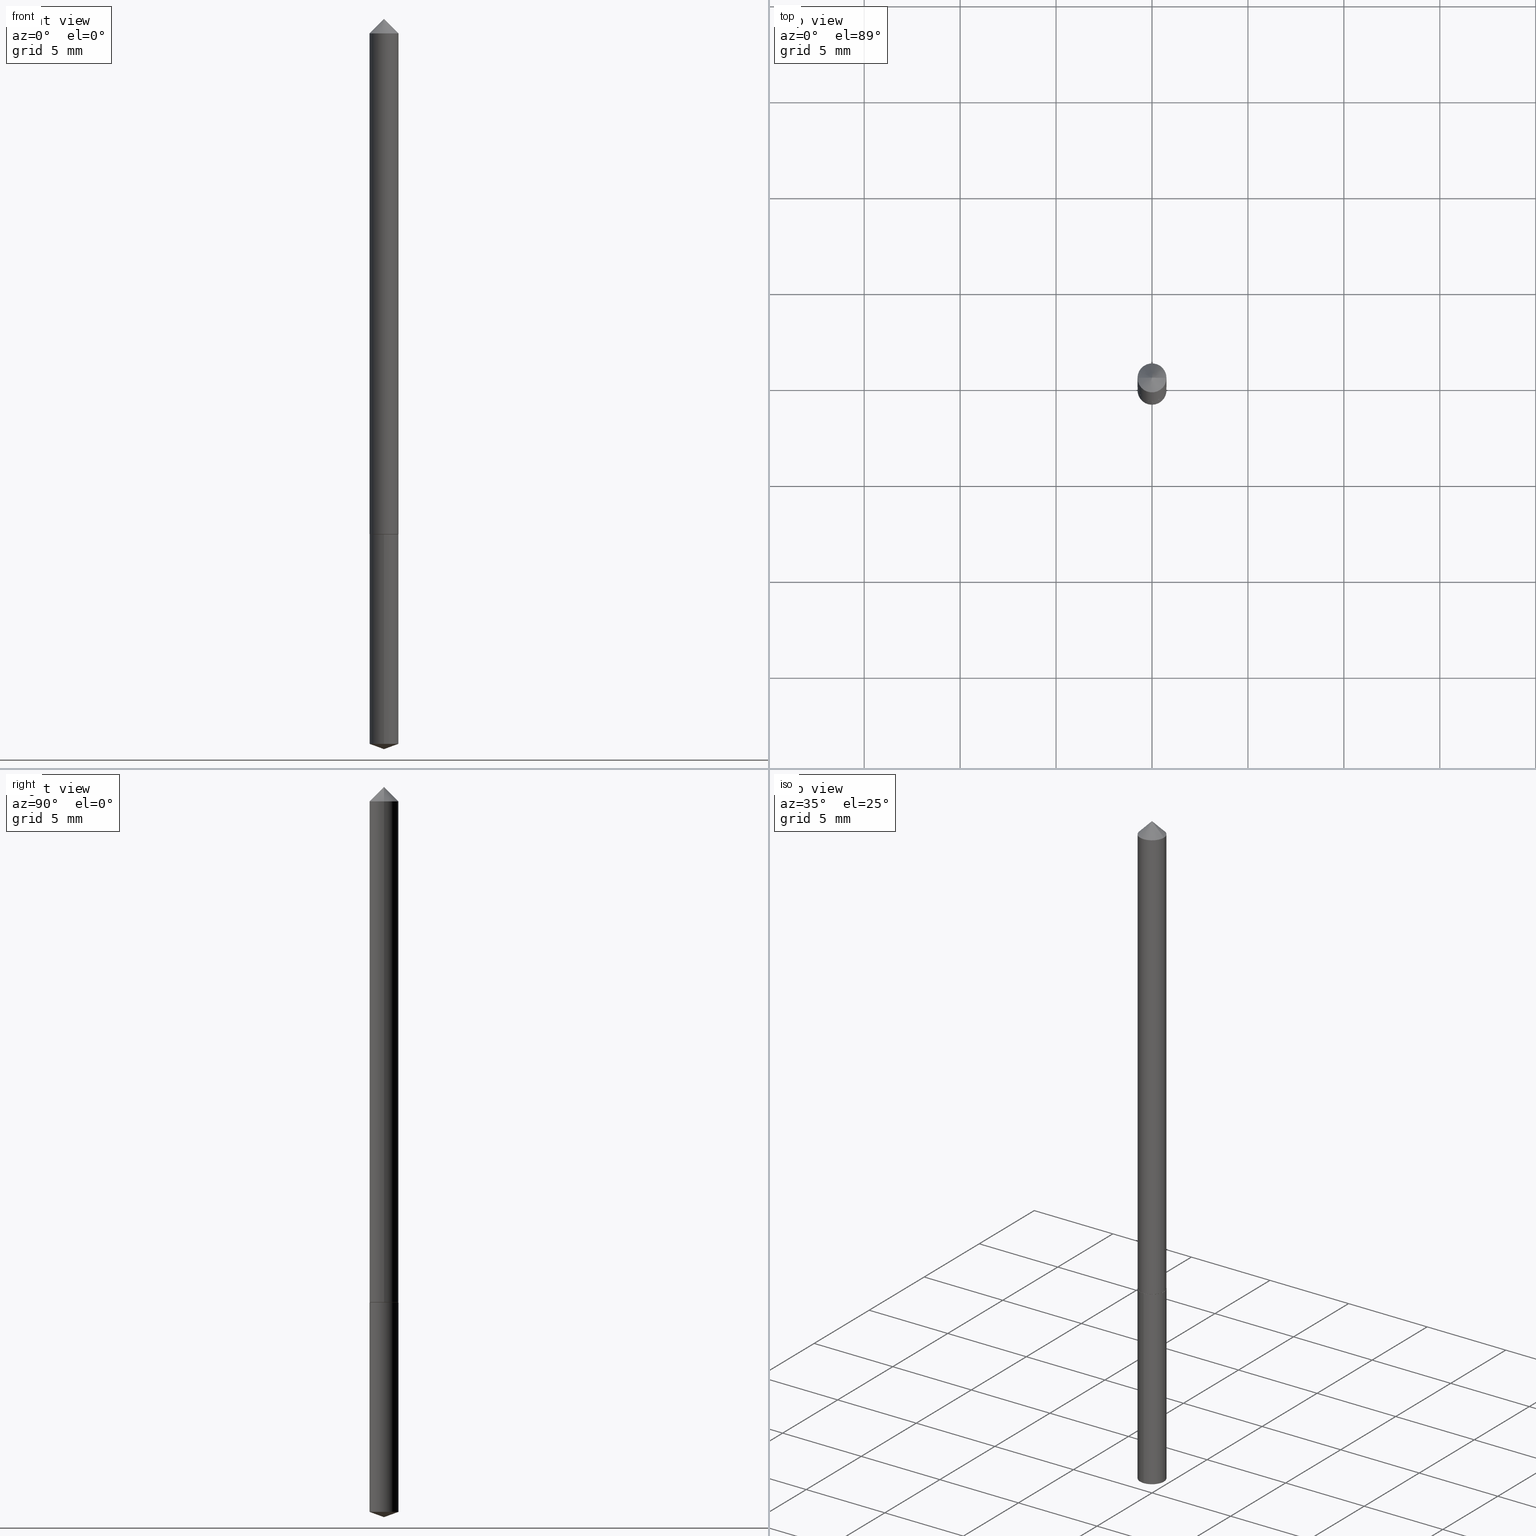
[diagram: canonical four-view strip — front | top / right | iso, engineering-drawing reading convention]
A machine part, canonical four-view strip (front | top / right | iso — engineering-drawing reading convention). The complete STEP part file that produces these views, byte-faithful:
ISO-10303-21;
HEADER;
FILE_DESCRIPTION (( 'STEP AP203' ),
    '1' );
FILE_NAME ('56262.STEP',
    '2024-04-22T21:39:23',
    ( '' ),
    ( '' ),
    'SwSTEP 2.0',
    'SolidWorks 2023',
    '' );
FILE_SCHEMA (( 'CONFIG_CONTROL_DESIGN' ));
ENDSEC;

DATA;
#1 = CC_DESIGN_DATE_AND_TIME_ASSIGNMENT ( #263, #13, ( #286 ) ) ;
#2 = CARTESIAN_POINT ( 'NONE',  ( -0.02975000000000000214, -1.691907300948238426E-15, -0.03125000000000020817 ) ) ;
#3 = ORIENTED_EDGE ( 'NONE', *, *, #335, .F. ) ;
#4 = AXIS2_PLACEMENT_3D ( 'NONE', #332, #123, #362 ) ;
#5 = COORDINATED_UNIVERSAL_TIME_OFFSET ( 5, 0, .BEHIND. ) ;
#6 = FACE_OUTER_BOUND ( 'NONE', #83, .T. ) ;
#7 = DIRECTION ( 'NONE',  ( -2.445468806185136597E-29, 3.491481338843145583E-15, 1.000000000000000000 ) ) ;
#8 = ORIENTED_EDGE ( 'NONE', *, *, #179, .F. ) ;
#9 = EDGE_CURVE ( 'NONE', #152, #108, #222, .T. ) ;
#10 = DIRECTION ( 'NONE',  ( -6.982962677686266711E-15, -1.000000000000000000, 3.475157955500627523E-15 ) ) ;
#11 = AXIS2_PLACEMENT_3D ( 'NONE', #147, #45, #196 ) ;
#12 = CARTESIAN_POINT ( 'NONE',  ( 3.668198671703803254E-29, -5.237228506328808169E-15, -1.500000000000000222 ) ) ;
#13 = DATE_TIME_ROLE ( 'creation_date' ) ;
#14 =( NAMED_UNIT ( * ) SI_UNIT ( $, .STERADIAN. ) SOLID_ANGLE_UNIT ( ) );
#15 = ADVANCED_FACE ( 'NONE', ( #248 ), #21, .T. ) ;
#16 = ORIENTED_EDGE ( 'NONE', *, *, #229, .F. ) ;
#17 = ORIENTED_EDGE ( 'NONE', *, *, #119, .F. ) ;
#18 = LINE ( 'NONE', #28, #232 ) ;
#19 = CONICAL_SURFACE ( 'NONE', #254, 0.02975000000000000214, 0.7853981633974450594 ) ;
#20 = CARTESIAN_POINT ( 'NONE',  ( 2.589751465750059705E-29, -3.697478737834891287E-15, -1.059000000000000163 ) ) ;
#21 = CONICAL_SURFACE ( 'NONE', #99, 0.02975000000000000214, 0.7853981633974450594 ) ;
#22 = CC_DESIGN_APPROVAL ( #104, ( #181 ) ) ;
#23 = ORIENTED_EDGE ( 'NONE', *, *, #126, .T. ) ;
#24 = DIRECTION ( 'NONE',  ( -2.445468806185136597E-29, 3.491481338843145583E-15, 1.000000000000000000 ) ) ;
#25 = ORIENTED_EDGE ( 'NONE', *, *, #343, .F. ) ;
#26 = APPROVAL_DATE_TIME ( #57, #104 ) ;
#27 = ORIENTED_EDGE ( 'NONE', *, *, #119, .T. ) ;
#28 = CARTESIAN_POINT ( 'NONE',  ( 0.02975000000000000214, -3.132086072725520932E-16, -0.03125000000000020817 ) ) ;
#29 = AXIS2_PLACEMENT_3D ( 'NONE', #106, #115, #111 ) ;
#30 = LOCAL_TIME ( 17, 39, 23.00000000000000000, #166 ) ;
#31 = DIRECTION ( 'NONE',  ( 2.445468806185136597E-29, -3.491481338843145583E-15, -1.000000000000000000 ) ) ;
#32 = DATE_AND_TIME ( #93, #272 ) ;
#33 = FACE_OUTER_BOUND ( 'NONE', #112, .T. ) ;
#34 = EDGE_CURVE ( 'NONE', #182, #137, #62, .T. ) ;
#35 = CARTESIAN_POINT ( 'NONE',  ( 7.642090019328602662E-31, -1.091087918388490267E-16, -0.03125000000000020817 ) ) ;
#36 = DIRECTION ( 'NONE',  ( -1.000000000000000000, 6.982962677686267499E-15, 0.000000000000000000 ) ) ;
#37 = AXIS2_PLACEMENT_3D ( 'NONE', #346, #73, #253 ) ;
#38 = EDGE_CURVE ( 'NONE', #59, #51, #74, .T. ) ;
#39 = CARTESIAN_POINT ( 'NONE',  ( -0.02975000000000006459, 2.113864638886302642E-16, -1.463383189350837589E-30 ) ) ;
#40 = COORDINATED_UNIVERSAL_TIME_OFFSET ( 5, 0, .BEHIND. ) ;
#41 = CARTESIAN_POINT ( 'NONE',  ( -9.261038161975491077E-28, 1.322222645515095340E-13, 37.87007874015748143 ) ) ;
#42 = ADVANCED_FACE ( 'NONE', ( #216 ), #140, .T. ) ;
#43 = AXIS2_PLACEMENT_3D ( 'NONE', #170, #281, #169 ) ;
#44 = APPROVAL_STATUS ( 'not_yet_approved' ) ;
#45 = DIRECTION ( 'NONE',  ( 2.445476136676092209E-29, -3.491470841162871062E-15, -1.000000000000000000 ) ) ;
#46 = DIRECTION ( 'NONE',  ( -6.982962677686265922E-15, -1.000000000000000000, 4.591341165822291216E-15 ) ) ;
#47 = ADVANCED_FACE ( 'NONE', ( #33 ), #122, .T. ) ;
#48 = DIRECTION ( 'NONE',  ( 0.000000000000000000, 0.000000000000000000, 1.000000000000000000 ) ) ;
#49 = CC_DESIGN_DATE_AND_TIME_ASSIGNMENT ( #32, #245, ( #100 ) ) ;
#50 = CC_DESIGN_APPROVAL ( #270, ( #100 ) ) ;
#51 = VERTEX_POINT ( 'NONE', #2 ) ;
#52 = CARTESIAN_POINT ( 'NONE',  ( 3.641726542818809311E-29, -5.199411338101806967E-15, -1.489171885530580886 ) ) ;
#53 = ORIENTED_EDGE ( 'NONE', *, *, #96, .T. ) ;
#54 = APPLICATION_PROTOCOL_DEFINITION ( 'international standard', 'config_control_design', 1994, #117 ) ;
#55 = ORIENTED_EDGE ( 'NONE', *, *, #179, .T. ) ;
#56 = PERSON_AND_ORGANIZATION ( #168, #313 ) ;
#57 = DATE_AND_TIME ( #297, #30 ) ;
#58 = CYLINDRICAL_SURFACE ( 'NONE', #149, 0.02974999999999999867 ) ;
#59 = VERTEX_POINT ( 'NONE', #94 ) ;
#60 = PERSON_AND_ORGANIZATION_ROLE ( 'design_supplier' ) ;
#61 = ADVANCED_FACE ( 'NONE', ( #188 ), #302, .T. ) ;
#62 = LINE ( 'NONE', #165, #68 ) ;
#63 = AXIS2_PLACEMENT_3D ( 'NONE', #275, #306, #139 ) ;
#64 = AXIS2_PLACEMENT_3D ( 'NONE', #109, #344, #257 ) ;
#65 = DIRECTION ( 'NONE',  ( 1.000000000000000000, -6.982962677686266711E-15, 4.876176775795935232E-29 ) ) ;
#66 = EDGE_CURVE ( 'NONE', #352, #137, #186, .T. ) ;
#67 = CARTESIAN_POINT ( 'NONE',  ( 7.642090019328602662E-31, -1.091087918388490267E-16, -0.03125000000000020817 ) ) ;
#68 = VECTOR ( 'NONE', #213, 39.37007874015748143 ) ;
#69 = CC_DESIGN_SECURITY_CLASSIFICATION ( #100, ( #181 ) ) ;
#70 = CARTESIAN_POINT ( 'NONE',  ( 3.668214205014139015E-29, -5.237206261744306790E-15, -1.500000000000000222 ) ) ;
#71 = CARTESIAN_POINT ( 'NONE',  ( 2.589751465750059705E-29, -3.697478737834891287E-15, -1.059000000000000163 ) ) ;
#72 = PERSON_AND_ORGANIZATION ( #168, #313 ) ;
#73 = DIRECTION ( 'NONE',  ( -2.445476136676092490E-29, 3.491470841162871062E-15, 1.000000000000000000 ) ) ;
#74 = CIRCLE ( 'NONE', #63, 0.02975000000000000214 ) ;
#75 = VECTOR ( 'NONE', #98, 39.37007874015748143 ) ;
#76 = DIRECTION ( 'NONE',  ( -2.445476136676092490E-29, 3.491470841162871062E-15, 1.000000000000000000 ) ) ;
#77 = DIRECTION ( 'NONE',  ( -2.445476136676092490E-29, 3.491470841162871062E-15, 1.000000000000000000 ) ) ;
#78 = ADVANCED_FACE ( 'NONE', ( #95 ), #338, .T. ) ;
#79 = APPROVAL_STATUS ( 'not_yet_approved' ) ;
#80 = VECTOR ( 'NONE', #198, 39.37007874015748143 ) ;
#81 =( NAMED_UNIT ( * ) PLANE_ANGLE_UNIT ( ) SI_UNIT ( $, .RADIAN. ) );
#82 = DIRECTION ( 'NONE',  ( -2.445468806185136597E-29, 3.491481338843145583E-15, 1.000000000000000000 ) ) ;
#83 = EDGE_LOOP ( 'NONE', ( #135, #235, #210 ) ) ;
#84 = PERSON_AND_ORGANIZATION ( #168, #313 ) ;
#85 = PLANE ( 'NONE',  #29 ) ;
#86 = EDGE_CURVE ( 'NONE', #320, #294, #284, .T. ) ;
#87 = MANIFOLD_SOLID_BREP ( 'Body-Move/Copy2[2]', #194 ) ;
#88 = CARTESIAN_POINT ( 'NONE',  ( 2.590974200153151946E-29, -3.699224478504312001E-15, -1.059499999999999886 ) ) ;
#89 = PERSON_AND_ORGANIZATION_ROLE ( 'design_owner' ) ;
#90 = AXIS2_PLACEMENT_3D ( 'NONE', #304, #277, #143 ) ;
#91 = ORIENTED_EDGE ( 'NONE', *, *, #190, .T. ) ;
#92 = ORIENTED_EDGE ( 'NONE', *, *, #237, .F. ) ;
#93 = CALENDAR_DATE ( 2024, 22, 4 ) ;
#94 = CARTESIAN_POINT ( 'NONE',  ( 0.02975000000000000214, -3.168519315000154702E-16, -0.03125000000000020817 ) ) ;
#95 = FACE_OUTER_BOUND ( 'NONE', #259, .T. ) ;
#96 = EDGE_CURVE ( 'NONE', #239, #230, #307, .T. ) ;
#97 = LINE ( 'NONE', #39, #80 ) ;
#98 = DIRECTION ( 'NONE',  ( 0.7071067811866833530, -2.468850131083679377E-15, 0.7071067811864117925 ) ) ;
#99 = AXIS2_PLACEMENT_3D ( 'NONE', #67, #167, #36 ) ;
#100 = SECURITY_CLASSIFICATION ( '', '', #268 ) ;
#101 = DIRECTION ( 'NONE',  ( -2.445468806185136597E-29, 3.491481338843145583E-15, 1.000000000000000000 ) ) ;
#102 = PERSON_AND_ORGANIZATION_ROLE ( 'creator' ) ;
#103 = AXIS2_PLACEMENT_3D ( 'NONE', #317, #82, #177 ) ;
#104 = APPROVAL ( #200, 'UNSPECIFIED' ) ;
#105 = PRODUCT_DEFINITION_SHAPE ( 'NONE', 'NONE',  #286 ) ;
#106 = CARTESIAN_POINT ( 'NONE',  ( 6.045920856466198322E-29, 1.248455776687611070E-15, -1.059499999999999886 ) ) ;
#107 = PERSON_AND_ORGANIZATION ( #168, #313 ) ;
#108 = VERTEX_POINT ( 'NONE', #238 ) ;
#109 = CARTESIAN_POINT ( 'NONE',  ( 2.589751465750059705E-29, -3.697478737834891287E-15, -1.059000000000000163 ) ) ;
#110 = CIRCLE ( 'NONE', #301, 0.02974999999999999867 ) ;
#111 = DIRECTION ( 'NONE',  ( 1.000000000000000000, -6.982962677686265922E-15, 4.876176775795935793E-29 ) ) ;
#112 = EDGE_LOOP ( 'NONE', ( #25, #255, #203, #327 ) ) ;
#113 = LINE ( 'NONE', #316, #163 ) ;
#114 = ORIENTED_EDGE ( 'NONE', *, *, #66, .F. ) ;
#115 = DIRECTION ( 'NONE',  ( -2.438088387897960049E-29, 3.491481338843145188E-15, 1.000000000000000000 ) ) ;
#116 = CARTESIAN_POINT ( 'NONE',  ( 2.113864638886661574E-16, 0.02974999999999479450, -1.489171885530580886 ) ) ;
#117 = APPLICATION_CONTEXT ( 'configuration controlled 3d designs of mechanical parts and assemblies' ) ;
#118 = ORIENTED_EDGE ( 'NONE', *, *, #86, .F. ) ;
#119 = EDGE_CURVE ( 'NONE', #137, #320, #298, .T. ) ;
#120 = COORDINATED_UNIVERSAL_TIME_OFFSET ( 5, 0, .BEHIND. ) ;
#121 = PRODUCT ( '56262', '56262', '', ( #292 ) ) ;
#122 = CONICAL_SURFACE ( 'NONE', #4, 0.02975000000000012704, 0.7853981633976403476 ) ;
#123 = DIRECTION ( 'NONE',  ( -2.445468806185136597E-29, 3.491481338843145583E-15, 1.000000000000000000 ) ) ;
#124 = CYLINDRICAL_SURFACE ( 'NONE', #318, 0.02975000000000006459 ) ;
#125 = CARTESIAN_POINT ( 'NONE',  ( 0.000000000000000000, 0.000000000000000000, 0.000000000000000000 ) ) ;
#126 = EDGE_CURVE ( 'NONE', #51, #59, #312, .T. ) ;
#127 = AXIS2_PLACEMENT_3D ( 'NONE', #360, #274, #220 ) ;
#128 = ORIENTED_EDGE ( 'NONE', *, *, #66, .T. ) ;
#129 = LINE ( 'NONE', #350, #131 ) ;
#130 = EDGE_LOOP ( 'NONE', ( #17, #359, #206, #118 ) ) ;
#131 = VECTOR ( 'NONE', #293, 39.37007874015748143 ) ;
#132 = DIRECTION ( 'NONE',  ( -2.445468806185136597E-29, 3.491481338843145583E-15, 1.000000000000000000 ) ) ;
#133 = ORIENTED_EDGE ( 'NONE', *, *, #174, .F. ) ;
#134 = DIRECTION ( 'NONE',  ( 1.000000000000000000, -6.982962677686261977E-15, 0.000000000000000000 ) ) ;
#135 = ORIENTED_EDGE ( 'NONE', *, *, #34, .F. ) ;
#136 = ADVANCED_FACE ( 'NONE', ( #154 ), #142, .T. ) ;
#137 = VERTEX_POINT ( 'NONE', #116 ) ;
#138 = AXIS2_PLACEMENT_3D ( 'NONE', #41, #76, #10 ) ;
#139 = DIRECTION ( 'NONE',  ( 1.000000000000000000, -6.982962677686267499E-15, 0.000000000000000000 ) ) ;
#140 = CYLINDRICAL_SURFACE ( 'NONE', #127, 0.02974999999999999867 ) ;
#141 = CARTESIAN_POINT ( 'NONE',  ( 3.621629985203349909E-32, -5.303917515922585637E-18, -0.001500000000000013909 ) ) ;
#142 = CONICAL_SURFACE ( 'NONE', #227, 0.02975000000000012704, 0.7853981633976403476 ) ;
#143 = DIRECTION ( 'NONE',  ( -6.982962677686266711E-15, -1.000000000000000000, 3.475157955500627523E-15 ) ) ;
#144 = APPROVAL_ROLE ( '' ) ;
#145 = CALENDAR_DATE ( 2024, 22, 4 ) ;
#146 = ORIENTED_EDGE ( 'NONE', *, *, #9, .F. ) ;
#147 = CARTESIAN_POINT ( 'NONE',  ( 2.590974200153152507E-29, -3.699224478504313579E-15, -1.059500000000000108 ) ) ;
#148 = FACE_OUTER_BOUND ( 'NONE', #155, .T. ) ;
#149 = AXIS2_PLACEMENT_3D ( 'NONE', #241, #218, #334 ) ;
#150 = EDGE_LOOP ( 'NONE', ( #16, #324, #178 ) ) ;
#151 = CARTESIAN_POINT ( 'NONE',  ( -2.077431396611299340E-16, -0.02975000000000519590, -1.489171885530580886 ) ) ;
#152 = VERTEX_POINT ( 'NONE', #323 ) ;
#153 = DIRECTION ( 'NONE',  ( -2.445476136676092490E-29, 3.491470841162871062E-15, 1.000000000000000000 ) ) ;
#154 = FACE_OUTER_BOUND ( 'NONE', #322, .T. ) ;
#155 = EDGE_LOOP ( 'NONE', ( #91, #269 ) ) ;
#156 = CARTESIAN_POINT ( 'NONE',  ( 0.000000000000000000, 0.000000000000000000, 0.000000000000000000 ) ) ;
#157 = LOCAL_TIME ( 17, 39, 23.00000000000000000, #5 ) ;
#158 = DIRECTION ( 'NONE',  ( -2.445468806185136597E-29, 3.491481338843145583E-15, 1.000000000000000000 ) ) ;
#159 = CC_DESIGN_PERSON_AND_ORGANIZATION_ASSIGNMENT ( #72, #102, ( #286 ) ) ;
#160 = PERSON_AND_ORGANIZATION ( #168, #313 ) ;
#161 = CARTESIAN_POINT ( 'NONE',  ( 2.590974200153151946E-29, -3.699224478504312001E-15, -1.059499999999999886 ) ) ;
#162 = PERSON_AND_ORGANIZATION_ROLE ( 'creator' ) ;
#163 = VECTOR ( 'NONE', #205, 39.37007874015748143 ) ;
#164 = APPROVAL_PERSON_ORGANIZATION ( #107, #104, #199 ) ;
#165 = CARTESIAN_POINT ( 'NONE',  ( 3.668214341222934863E-29, -5.237206261744306790E-15, -1.500000000000000222 ) ) ;
#166 = COORDINATED_UNIVERSAL_TIME_OFFSET ( 5, 0, .BEHIND. ) ;
#167 = DIRECTION ( 'NONE',  ( 2.445468806185136597E-29, -3.491481338843145583E-15, -1.000000000000000000 ) ) ;
#168 = PERSON ( 'UNSPECIFIED', 'UNSPECIFIED', 'UNSPECIFIED', ('UNSPECIFIED'), ('UNSPECIFIED'), ('UNSPECIFIED') ) ;
#169 = DIRECTION ( 'NONE',  ( -6.982962677686265922E-15, -1.000000000000000000, 0.000000000000000000 ) ) ;
#170 = CARTESIAN_POINT ( 'NONE',  ( 3.641726542818809311E-29, -5.199411338101806967E-15, -1.489171885530580886 ) ) ;
#171 = ADVANCED_FACE ( 'NONE', ( #289 ), #58, .T. ) ;
#172 = APPROVAL_DATE_TIME ( #193, #348 ) ;
#173 = EDGE_LOOP ( 'NONE', ( #8, #231, #208, #266 ) ) ;
#174 = EDGE_CURVE ( 'NONE', #108, #152, #342, .T. ) ;
#175 = DIRECTION ( 'NONE',  ( -2.445476136676092490E-29, 3.491470841162871062E-15, 1.000000000000000000 ) ) ;
#176 = VECTOR ( 'NONE', #315, 39.37007874015748854 ) ;
#177 = DIRECTION ( 'NONE',  ( 1.000000000000000000, -6.982962677686267499E-15, 0.000000000000000000 ) ) ;
#178 = ORIENTED_EDGE ( 'NONE', *, *, #38, .T. ) ;
#179 = EDGE_CURVE ( 'NONE', #230, #51, #97, .T. ) ;
#180 = DIRECTION ( 'NONE',  ( 1.000000000000000000, 0.000000000000000000, 0.000000000000000000 ) ) ;
#181 = PRODUCT_DEFINITION_FORMATION_WITH_SPECIFIED_SOURCE ( 'ANY', '', #121, .NOT_KNOWN. ) ;
#182 = VERTEX_POINT ( 'NONE', #70 ) ;
#183 = PERSON_AND_ORGANIZATION_ROLE ( 'classification_officer' ) ;
#184 = EDGE_LOOP ( 'NONE', ( #128, #27, #242, #212 ) ) ;
#185 = DIRECTION ( 'NONE',  ( 0.7071067811865452413, -7.319954787623248157E-15, -0.7071067811865497932 ) ) ;
#186 = CIRCLE ( 'NONE', #43, 0.02974999999999999867 ) ;
#187 = CARTESIAN_POINT ( 'NONE',  ( 2.113864638886662806E-16, 0.02974999999999630024, -1.059500000000000330 ) ) ;
#188 = FACE_OUTER_BOUND ( 'NONE', #197, .T. ) ;
#189 = EDGE_CURVE ( 'NONE', #352, #294, #192, .T. ) ;
#190 = EDGE_CURVE ( 'NONE', #294, #320, #328, .T. ) ;
#191 = MANIFOLD_SOLID_BREP ( 'Body-Move/Copy2[1]', #351 ) ;
#192 = LINE ( 'NONE', #282, #214 ) ;
#193 = DATE_AND_TIME ( #145, #364 ) ;
#194 = CLOSED_SHELL ( 'NONE', ( #15, #61, #136, #244, #47, #223, #278 ) ) ;
#195 = VECTOR ( 'NONE', #325, 39.37007874015748143 ) ;
#196 = DIRECTION ( 'NONE',  ( 6.982962677686265922E-15, 1.000000000000000000, -3.491470841162871062E-15 ) ) ;
#197 = EDGE_LOOP ( 'NONE', ( #53, #55, #291, #250 ) ) ;
#198 = DIRECTION ( 'NONE',  ( -2.445468806185136877E-29, 3.491481338843145188E-15, 1.000000000000000000 ) ) ;
#199 = APPROVAL_ROLE ( '' ) ;
#200 = APPROVAL_STATUS ( 'not_yet_approved' ) ;
#201 = PRODUCT_RELATED_PRODUCT_CATEGORY ( 'detail', '', ( #121 ) ) ;
#202 = DIRECTION ( 'NONE',  ( 1.000000000000000000, -6.982962677686266711E-15, 4.876176775795935232E-29 ) ) ;
#203 = ORIENTED_EDGE ( 'NONE', *, *, #335, .T. ) ;
#204 = CC_DESIGN_APPROVAL ( #348, ( #286 ) ) ;
#205 = DIRECTION ( 'NONE',  ( -2.445468806185136877E-29, 3.491481338843145188E-15, 1.000000000000000000 ) ) ;
#206 = ORIENTED_EDGE ( 'NONE', *, *, #189, .T. ) ;
#207 = CARTESIAN_POINT ( 'NONE',  ( -0.02975000000000012704, -3.486092273946260702E-15, -1.059000000000000163 ) ) ;
#208 = ORIENTED_EDGE ( 'NONE', *, *, #256, .T. ) ;
#209 = ADVANCED_FACE ( 'NONE', ( #148 ), #339, .F. ) ;
#210 = ORIENTED_EDGE ( 'NONE', *, *, #265, .F. ) ;
#211 = VECTOR ( 'NONE', #175, 39.37007874015748143 ) ;
#212 = ORIENTED_EDGE ( 'NONE', *, *, #189, .F. ) ;
#213 = DIRECTION ( 'NONE',  ( 6.676917655467991006E-15, 0.9396926207859128688, 0.3420201433256565560 ) ) ;
#214 = VECTOR ( 'NONE', #283, 39.37007874015748143 ) ;
#215 = CIRCLE ( 'NONE', #64, 0.02975000000000012704 ) ;
#216 = FACE_OUTER_BOUND ( 'NONE', #184, .T. ) ;
#217 = APPROVAL_DATE_TIME ( #308, #270 ) ;
#218 = DIRECTION ( 'NONE',  ( -2.445476136676092490E-29, 3.491470841162871062E-15, 1.000000000000000000 ) ) ;
#219 = ADVANCED_FACE ( 'NONE', ( #6 ), #290, .T. ) ;
#220 = DIRECTION ( 'NONE',  ( -6.982962677686265922E-15, -1.000000000000000000, 4.591341165822291216E-15 ) ) ;
#221 = CARTESIAN_POINT ( 'NONE',  ( 0.02975000000000012704, -3.905221877496058889E-15, -1.059000000000000163 ) ) ;
#222 = CIRCLE ( 'NONE', #363, 0.02925000000000017170 ) ;
#223 = ADVANCED_FACE ( 'NONE', ( #226 ), #124, .T. ) ;
#224 = CALENDAR_DATE ( 2024, 22, 4 ) ;
#225 = ORIENTED_EDGE ( 'NONE', *, *, #96, .F. ) ;
#226 = FACE_OUTER_BOUND ( 'NONE', #173, .T. ) ;
#227 = AXIS2_PLACEMENT_3D ( 'NONE', #20, #132, #234 ) ;
#228 = APPROVAL_PERSON_ORGANIZATION ( #305, #270, #144 ) ;
#229 = EDGE_CURVE ( 'NONE', #330, #51, #129, .T. ) ;
#230 = VERTEX_POINT ( 'NONE', #345 ) ;
#231 = ORIENTED_EDGE ( 'NONE', *, *, #310, .T. ) ;
#232 = VECTOR ( 'NONE', #185, 39.37007874015748143 ) ;
#233 =( GEOMETRIC_REPRESENTATION_CONTEXT ( 3 ) GLOBAL_UNCERTAINTY_ASSIGNED_CONTEXT ( ( #247 ) ) GLOBAL_UNIT_ASSIGNED_CONTEXT ( ( #321, #81, #14 ) ) REPRESENTATION_CONTEXT ( 'NONE', 'WORKASPACE' ) );
#234 = DIRECTION ( 'NONE',  ( 1.000000000000000000, -6.982962677686261977E-15, 0.000000000000000000 ) ) ;
#235 = ORIENTED_EDGE ( 'NONE', *, *, #237, .T. ) ;
#236 = CARTESIAN_POINT ( 'NONE',  ( 0.02975000000000012704, -3.905221877496058889E-15, -1.059000000000000163 ) ) ;
#237 = EDGE_CURVE ( 'NONE', #182, #352, #326, .T. ) ;
#238 = CARTESIAN_POINT ( 'NONE',  ( -0.02925000000000017170, -3.488741501120371114E-15, -1.059499999999999886 ) ) ;
#239 = VERTEX_POINT ( 'NONE', #236 ) ;
#240 = PERSON_AND_ORGANIZATION ( #168, #313 ) ;
#241 = CARTESIAN_POINT ( 'NONE',  ( 2.590974200153152507E-29, -3.699224478504313579E-15, -1.059500000000000108 ) ) ;
#242 = ORIENTED_EDGE ( 'NONE', *, *, #190, .F. ) ;
#243 = AXIS2_PLACEMENT_3D ( 'NONE', #156, #48, #180 ) ;
#244 = ADVANCED_FACE ( 'NONE', ( #355 ), #85, .F. ) ;
#245 = DATE_TIME_ROLE ( 'classification_date' ) ;
#246 = AXIS2_PLACEMENT_3D ( 'NONE', #71, #7, #134 ) ;
#247 = UNCERTAINTY_MEASURE_WITH_UNIT (LENGTH_MEASURE( 1.000000000000000082E-05 ), #321, 'distance_accuracy_value', 'NONE');
#248 = FACE_OUTER_BOUND ( 'NONE', #150, .T. ) ;
#249 = CARTESIAN_POINT ( 'NONE',  ( 2.590974200153152507E-29, -3.699224478504313579E-15, -1.059500000000000108 ) ) ;
#250 = ORIENTED_EDGE ( 'NONE', *, *, #256, .F. ) ;
#251 = CARTESIAN_POINT ( 'NONE',  ( 0.000000000000000000, 0.000000000000000000, 0.000000000000000000 ) ) ;
#252 = AXIS2_PLACEMENT_3D ( 'NONE', #125, #333, #65 ) ;
#253 = DIRECTION ( 'NONE',  ( -6.982962677686265922E-15, -1.000000000000000000, 4.591341165822291216E-15 ) ) ;
#254 = AXIS2_PLACEMENT_3D ( 'NONE', #35, #31, #361 ) ;
#255 = ORIENTED_EDGE ( 'NONE', *, *, #174, .T. ) ;
#256 = EDGE_CURVE ( 'NONE', #239, #59, #113, .T. ) ;
#257 = DIRECTION ( 'NONE',  ( 1.000000000000000000, -6.982962677686261977E-15, 0.000000000000000000 ) ) ;
#258 = APPROVAL_ROLE ( '' ) ;
#259 = EDGE_LOOP ( 'NONE', ( #92, #347, #114 ) ) ;
#260 = EDGE_LOOP ( 'NONE', ( #264, #285, #23 ) ) ;
#261 = LINE ( 'NONE', #207, #195 ) ;
#262 = DIRECTION ( 'NONE',  ( -6.982962677686265922E-15, -1.000000000000000000, 0.000000000000000000 ) ) ;
#263 = DATE_AND_TIME ( #295, #319 ) ;
#264 = ORIENTED_EDGE ( 'NONE', *, *, #267, .F. ) ;
#265 = EDGE_CURVE ( 'NONE', #137, #352, #110, .T. ) ;
#266 = ORIENTED_EDGE ( 'NONE', *, *, #126, .F. ) ;
#267 = EDGE_CURVE ( 'NONE', #330, #59, #18, .T. ) ;
#268 = SECURITY_CLASSIFICATION_LEVEL ( 'unclassified' ) ;
#269 = ORIENTED_EDGE ( 'NONE', *, *, #86, .T. ) ;
#270 = APPROVAL ( #44, 'UNSPECIFIED' ) ;
#271 = AXIS2_PLACEMENT_3D ( 'NONE', #249, #77, #46 ) ;
#272 = LOCAL_TIME ( 17, 39, 23.00000000000000000, #120 ) ;
#273 = FACE_OUTER_BOUND ( 'NONE', #260, .T. ) ;
#274 = DIRECTION ( 'NONE',  ( -2.445476136676092490E-29, 3.491470841162871062E-15, 1.000000000000000000 ) ) ;
#275 = CARTESIAN_POINT ( 'NONE',  ( 7.642090019328602662E-31, -1.091087918388490267E-16, -0.03125000000000020817 ) ) ;
#276 = LINE ( 'NONE', #221, #75 ) ;
#277 = DIRECTION ( 'NONE',  ( -2.445476136676092490E-29, 3.491470841162871062E-15, 1.000000000000000000 ) ) ;
#278 = ADVANCED_FACE ( 'NONE', ( #273 ), #19, .T. ) ;
#279 = AXIS2_PLACEMENT_3D ( 'NONE', #161, #101, #287 ) ;
#280 = APPROVAL_PERSON_ORGANIZATION ( #56, #348, #258 ) ;
#281 = DIRECTION ( 'NONE',  ( -2.445476136676092490E-29, 3.491470841162871062E-15, 1.000000000000000000 ) ) ;
#282 = CARTESIAN_POINT ( 'NONE',  ( -2.077431396611405097E-16, -0.02975000000000370057, -1.059499999999999886 ) ) ;
#283 = DIRECTION ( 'NONE',  ( -2.445476136676092490E-29, 3.491470841162871062E-15, 1.000000000000000000 ) ) ;
#284 = CIRCLE ( 'NONE', #37, 0.02974999999999999867 ) ;
#285 = ORIENTED_EDGE ( 'NONE', *, *, #229, .T. ) ;
#286 = PRODUCT_DEFINITION ( 'UNKNOWN', '', #181, #340 ) ;
#287 = DIRECTION ( 'NONE',  ( 1.000000000000000000, -6.982962677686266711E-15, 0.000000000000000000 ) ) ;
#288 = APPLICATION_CONTEXT ( 'configuration controlled 3d designs of mechanical parts and assemblies' ) ;
#289 = FACE_OUTER_BOUND ( 'NONE', #130, .T. ) ;
#290 = CONICAL_SURFACE ( 'NONE', #138, 108.1684023407363497, 1.221730476396040155 ) ;
#291 = ORIENTED_EDGE ( 'NONE', *, *, #38, .F. ) ;
#292 = MECHANICAL_CONTEXT ( 'NONE', #117, 'mechanical' ) ;
#293 = DIRECTION ( 'NONE',  ( -0.7071067811865452413, 2.468850131082233000E-15, -0.7071067811865497932 ) ) ;
#294 = VERTEX_POINT ( 'NONE', #314 ) ;
#295 = CALENDAR_DATE ( 2024, 22, 4 ) ;
#296 = APPLICATION_PROTOCOL_DEFINITION ( 'international standard', 'config_control_design', 1994, #288 ) ;
#297 = CALENDAR_DATE ( 2024, 22, 4 ) ;
#298 = LINE ( 'NONE', #357, #211 ) ;
#299 = ORIENTED_EDGE ( 'NONE', *, *, #343, .T. ) ;
#300 = CC_DESIGN_PERSON_AND_ORGANIZATION_ASSIGNMENT ( #160, #60, ( #181 ) ) ;
#301 = AXIS2_PLACEMENT_3D ( 'NONE', #52, #153, #262 ) ;
#302 = CYLINDRICAL_SURFACE ( 'NONE', #252, 0.02975000000000006459 ) ;
#303 = PERSON_AND_ORGANIZATION ( #168, #313 ) ;
#304 = CARTESIAN_POINT ( 'NONE',  ( -9.261038161975491077E-28, 1.322222645515095340E-13, 37.87007874015748143 ) ) ;
#305 = PERSON_AND_ORGANIZATION ( #168, #313 ) ;
#306 = DIRECTION ( 'NONE',  ( -2.445468806185136597E-29, 3.491481338843145583E-15, 1.000000000000000000 ) ) ;
#307 = CIRCLE ( 'NONE', #246, 0.02975000000000012704 ) ;
#308 = DATE_AND_TIME ( #224, #157 ) ;
#309 = COORDINATED_UNIVERSAL_TIME_OFFSET ( 5, 0, .BEHIND. ) ;
#310 = EDGE_CURVE ( 'NONE', #230, #239, #215, .T. ) ;
#311 = ADVANCED_BREP_SHAPE_REPRESENTATION ( '56262', ( #191, #87, #243 ), #233 ) ;
#312 = CIRCLE ( 'NONE', #103, 0.02975000000000000214 ) ;
#313 = ORGANIZATION ( 'UNSPECIFIED', 'UNSPECIFIED', '' ) ;
#314 = CARTESIAN_POINT ( 'NONE',  ( -2.077431396611405097E-16, -0.02975000000000370057, -1.059499999999999886 ) ) ;
#315 = DIRECTION ( 'NONE',  ( -6.561838499445221362E-15, -0.9396926207859103153, 0.3420201433256630508 ) ) ;
#316 = CARTESIAN_POINT ( 'NONE',  ( 0.02975000000000006459, -2.077431396611668872E-16, 1.450662590799293904E-30 ) ) ;
#317 = CARTESIAN_POINT ( 'NONE',  ( 7.642090019328602662E-31, -1.091087918388490267E-16, -0.03125000000000020817 ) ) ;
#318 = AXIS2_PLACEMENT_3D ( 'NONE', #251, #24, #202 ) ;
#319 = LOCAL_TIME ( 17, 39, 23.00000000000000000, #309 ) ;
#320 = VERTEX_POINT ( 'NONE', #187 ) ;
#321 =( CONVERSION_BASED_UNIT ( 'INCH', #353 ) LENGTH_UNIT ( ) NAMED_UNIT ( #331 ) );
#322 = EDGE_LOOP ( 'NONE', ( #354, #299, #225, #3 ) ) ;
#323 = CARTESIAN_POINT ( 'NONE',  ( 0.02925000000000017170, -3.903476136826636597E-15, -1.059499999999999886 ) ) ;
#324 = ORIENTED_EDGE ( 'NONE', *, *, #267, .T. ) ;
#325 = DIRECTION ( 'NONE',  ( -0.7071067811866833530, 7.493145998870846409E-15, 0.7071067811864117925 ) ) ;
#326 = LINE ( 'NONE', #12, #176 ) ;
#327 = ORIENTED_EDGE ( 'NONE', *, *, #310, .F. ) ;
#328 = CIRCLE ( 'NONE', #271, 0.02974999999999999867 ) ;
#329 = CC_DESIGN_PERSON_AND_ORGANIZATION_ASSIGNMENT ( #303, #162, ( #181 ) ) ;
#330 = VERTEX_POINT ( 'NONE', #141 ) ;
#331 = DIMENSIONAL_EXPONENTS ( 1.000000000000000000, 0.000000000000000000, 0.000000000000000000, 0.000000000000000000, 0.000000000000000000, 0.000000000000000000, 0.000000000000000000 ) ;
#332 = CARTESIAN_POINT ( 'NONE',  ( 2.589751465750059705E-29, -3.697478737834891287E-15, -1.059000000000000163 ) ) ;
#333 = DIRECTION ( 'NONE',  ( -2.445468806185136597E-29, 3.491481338843145583E-15, 1.000000000000000000 ) ) ;
#334 = DIRECTION ( 'NONE',  ( -6.982962677686265922E-15, -1.000000000000000000, 4.591341165822291216E-15 ) ) ;
#335 = EDGE_CURVE ( 'NONE', #152, #239, #276, .T. ) ;
#336 = DIRECTION ( 'NONE',  ( 1.000000000000000000, -6.982962677686266711E-15, 0.000000000000000000 ) ) ;
#337 = CC_DESIGN_PERSON_AND_ORGANIZATION_ASSIGNMENT ( #240, #183, ( #100 ) ) ;
#338 = CONICAL_SURFACE ( 'NONE', #90, 108.1684023407363497, 1.221730476396040155 ) ;
#339 = PLANE ( 'NONE',  #11 ) ;
#340 = DESIGN_CONTEXT ( 'detailed design', #288, 'design' ) ;
#341 = SHAPE_DEFINITION_REPRESENTATION ( #105, #311 ) ;
#342 = CIRCLE ( 'NONE', #279, 0.02925000000000017170 ) ;
#343 = EDGE_CURVE ( 'NONE', #108, #230, #261, .T. ) ;
#344 = DIRECTION ( 'NONE',  ( -2.445468806185136597E-29, 3.491481338843145583E-15, 1.000000000000000000 ) ) ;
#345 = CARTESIAN_POINT ( 'NONE',  ( -0.02975000000000012704, -3.486092273946260702E-15, -1.059000000000000163 ) ) ;
#346 = CARTESIAN_POINT ( 'NONE',  ( 2.590974200153152507E-29, -3.699224478504313579E-15, -1.059500000000000108 ) ) ;
#347 = ORIENTED_EDGE ( 'NONE', *, *, #34, .T. ) ;
#348 = APPROVAL ( #79, 'UNSPECIFIED' ) ;
#349 =( LENGTH_UNIT ( ) NAMED_UNIT ( * ) SI_UNIT ( $, .METRE. ) );
#350 = CARTESIAN_POINT ( 'NONE',  ( -0.02975000000000000214, 9.863434782231742915E-17, -0.03125000000000020817 ) ) ;
#351 = CLOSED_SHELL ( 'NONE', ( #42, #78, #219, #171, #209 ) ) ;
#352 = VERTEX_POINT ( 'NONE', #151 ) ;
#353 = LENGTH_MEASURE_WITH_UNIT ( LENGTH_MEASURE( 0.02539999999999999897 ), #349 );
#354 = ORIENTED_EDGE ( 'NONE', *, *, #9, .T. ) ;
#355 = FACE_OUTER_BOUND ( 'NONE', #358, .T. ) ;
#356 = CC_DESIGN_PERSON_AND_ORGANIZATION_ASSIGNMENT ( #84, #89, ( #121 ) ) ;
#357 = CARTESIAN_POINT ( 'NONE',  ( 2.113864638886556803E-16, 0.02974999999999630024, -1.059500000000000330 ) ) ;
#358 = EDGE_LOOP ( 'NONE', ( #146, #133 ) ) ;
#359 = ORIENTED_EDGE ( 'NONE', *, *, #265, .T. ) ;
#360 = CARTESIAN_POINT ( 'NONE',  ( 2.590974200153152507E-29, -3.699224478504313579E-15, -1.059500000000000108 ) ) ;
#361 = DIRECTION ( 'NONE',  ( -1.000000000000000000, 6.982962677686267499E-15, 0.000000000000000000 ) ) ;
#362 = DIRECTION ( 'NONE',  ( 1.000000000000000000, -6.982962677686261977E-15, 0.000000000000000000 ) ) ;
#363 = AXIS2_PLACEMENT_3D ( 'NONE', #88, #158, #336 ) ;
#364 = LOCAL_TIME ( 17, 39, 23.00000000000000000, #40 ) ;
ENDSEC;
END-ISO-10303-21;
